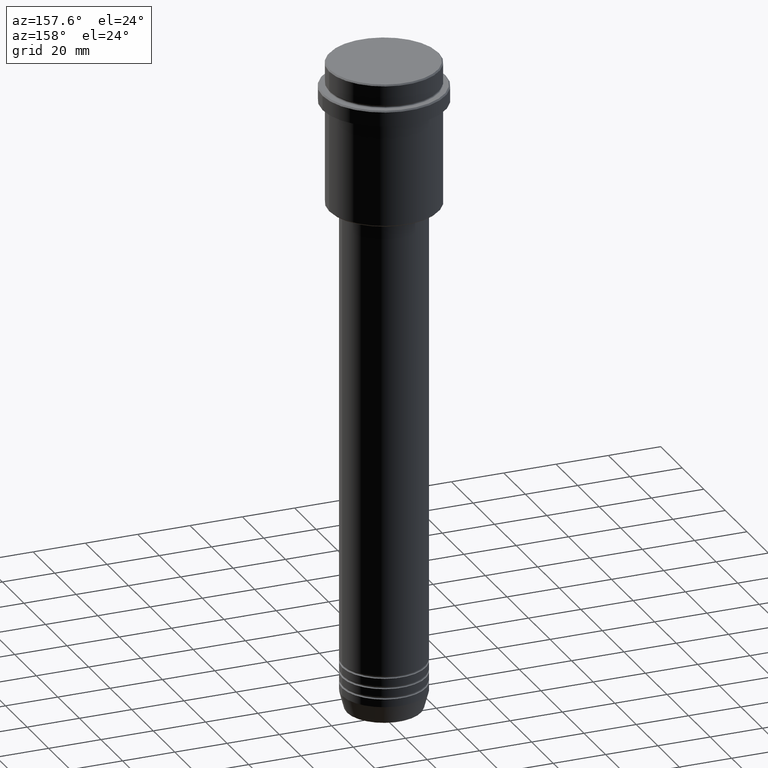
[diagram: clean part render]
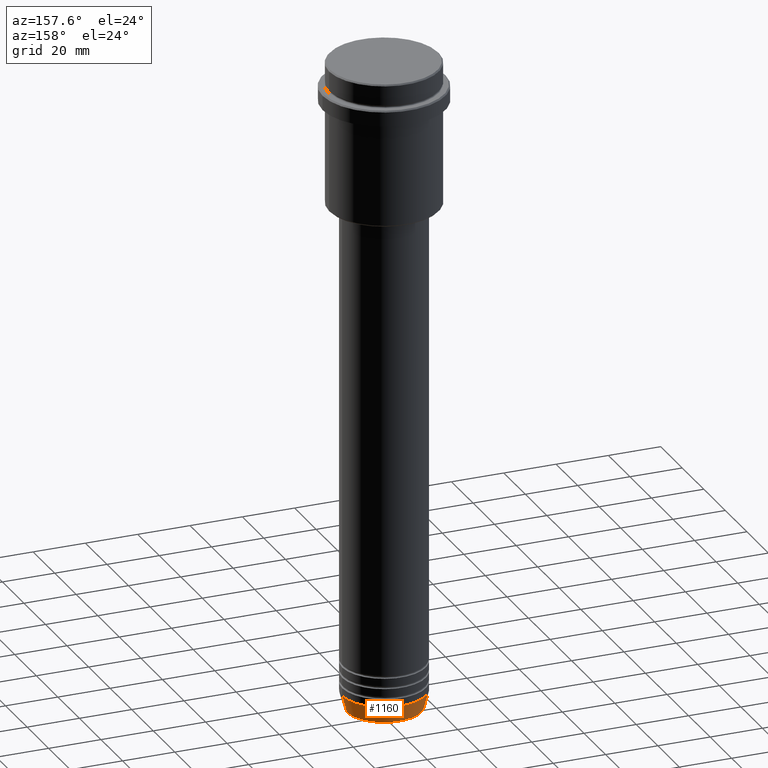
[diagram: same view with one face highlighted and labeled with its STEP entity id]
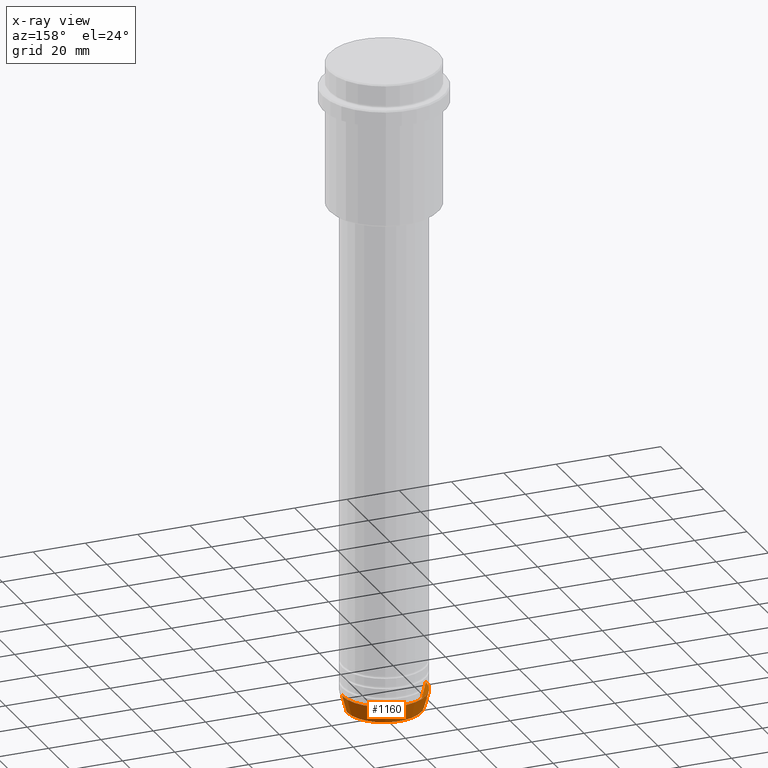
[diagram: x-ray of the same camera — body ghosted, the highlighted face saturated]
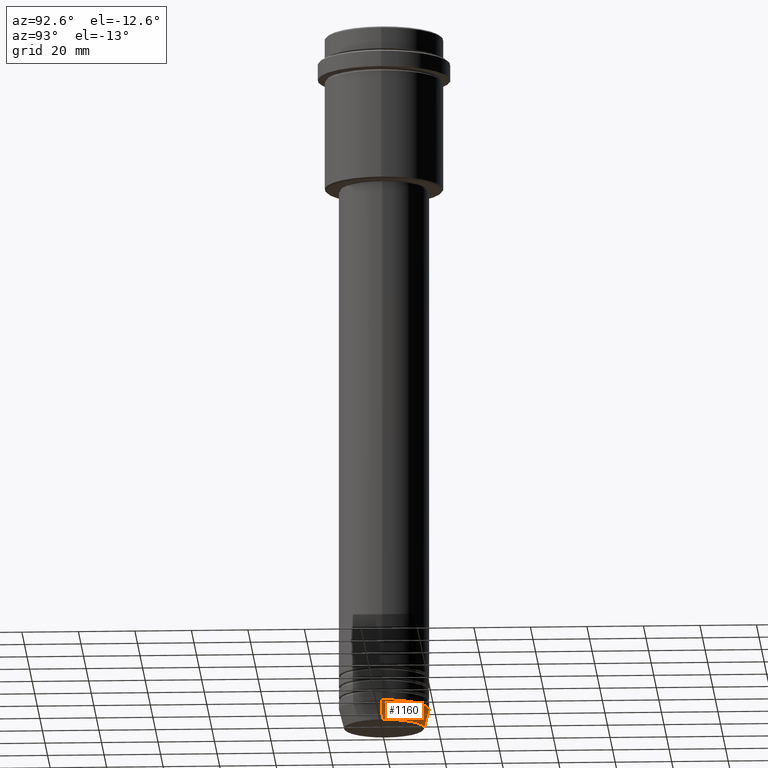
[diagram: same view with one face highlighted and labeled with its STEP entity id]
A machine part, auxiliary view. The second image highlights one B-rep face of the part: STEP entity #1160.
The next image is the same camera in x-ray: the body ghosted, the highlighted face saturated — about 0% of this face is hidden behind the body in this view.
A second angle (auxiliary view) of the same face is appended — the face is thin or edge-on in the first view.
In plain terms, the highlighted conical surface has half-angle 15 deg.
Its self-contained STEP definition (entity closure, byte-faithful):
#42 = DIRECTION ( 'NONE',  ( 0.2588190451025213501, 0.000000000000000000, 0.9659258262890680902 ) ) ;
#169 = LINE ( 'NONE', #693, #470 ) ;
#179 = DIRECTION ( 'NONE',  ( 1.000000000000000000, 0.000000000000000000, 0.000000000000000000 ) ) ;
#198 = EDGE_CURVE ( 'NONE', #1055, #305, #660, .T. ) ;
#254 = DIRECTION ( 'NONE',  ( -0.2588190451025213501, 3.169619151431772337E-17, 0.9659258262890680902 ) ) ;
#305 = VERTEX_POINT ( 'NONE', #1196 ) ;
#315 = VECTOR ( 'NONE', #254, 1000.000000000000000 ) ;
#395 = ORIENTED_EDGE ( 'NONE', *, *, #1106, .F. ) ;
#433 = CARTESIAN_POINT ( 'NONE',  ( 0.000000000000000000, 0.000000000000000000, -243.0000000000000000 ) ) ;
#437 = DIRECTION ( 'NONE',  ( 1.000000000000000000, 0.000000000000000000, 0.000000000000000000 ) ) ;
#459 = LINE ( 'NONE', #800, #315 ) ;
#470 = VECTOR ( 'NONE', #42, 1000.000000000000000 ) ;
#508 = ORIENTED_EDGE ( 'NONE', *, *, #964, .T. ) ;
#513 = DIRECTION ( 'NONE',  ( -0.000000000000000000, -0.000000000000000000, 1.000000000000000000 ) ) ;
#514 = AXIS2_PLACEMENT_3D ( 'NONE', #613, #1047, #842 ) ;
#556 = DIRECTION ( 'NONE',  ( -0.000000000000000000, -0.000000000000000000, 1.000000000000000000 ) ) ;
#613 = CARTESIAN_POINT ( 'NONE',  ( 0.000000000000000000, 0.000000000000000000, -243.0000000000000000 ) ) ;
#660 = CIRCLE ( 'NONE', #749, 16.00000000000000000 ) ;
#669 = VERTEX_POINT ( 'NONE', #908 ) ;
#693 = CARTESIAN_POINT ( 'NONE',  ( 16.00000000000000000, 0.000000000000000000, -243.0000000000000000 ) ) ;
#749 = AXIS2_PLACEMENT_3D ( 'NONE', #433, #556, #437 ) ;
#799 = VERTEX_POINT ( 'NONE', #841 ) ;
#800 = CARTESIAN_POINT ( 'NONE',  ( -16.00000000000000000, 1.959434878635765131E-15, -243.0000000000000000 ) ) ;
#832 = CIRCLE ( 'NONE', #1380, 14.22365507213718239 ) ;
#841 = CARTESIAN_POINT ( 'NONE',  ( -14.22365507213718239, 1.850665122131322942E-15, -249.6294095225512422 ) ) ;
#842 = DIRECTION ( 'NONE',  ( 1.000000000000000000, 0.000000000000000000, 0.000000000000000000 ) ) ;
#882 = EDGE_LOOP ( 'NONE', ( #885, #508, #1151, #395 ) ) ;
#885 = ORIENTED_EDGE ( 'NONE', *, *, #1085, .T. ) ;
#908 = CARTESIAN_POINT ( 'NONE',  ( 14.22365507213718239, 0.000000000000000000, -249.6294095225512422 ) ) ;
#952 = CONICAL_SURFACE ( 'NONE', #514, 16.00000000000000000, 0.2617993877991500740 ) ;
#964 = EDGE_CURVE ( 'NONE', #799, #305, #459, .T. ) ;
#1047 = DIRECTION ( 'NONE',  ( -0.000000000000000000, -0.000000000000000000, 1.000000000000000000 ) ) ;
#1055 = VERTEX_POINT ( 'NONE', #1244 ) ;
#1085 = EDGE_CURVE ( 'NONE', #669, #799, #832, .T. ) ;
#1106 = EDGE_CURVE ( 'NONE', #669, #1055, #169, .T. ) ;
#1151 = ORIENTED_EDGE ( 'NONE', *, *, #198, .F. ) ;
#1160 = ADVANCED_FACE ( 'NONE', ( #1372 ), #952, .T. ) ;
#1196 = CARTESIAN_POINT ( 'NONE',  ( -16.00000000000000000, 1.959434878635765131E-15, -243.0000000000000000 ) ) ;
#1244 = CARTESIAN_POINT ( 'NONE',  ( 16.00000000000000000, 0.000000000000000000, -243.0000000000000000 ) ) ;
#1372 = FACE_OUTER_BOUND ( 'NONE', #882, .T. ) ;
#1380 = AXIS2_PLACEMENT_3D ( 'NONE', #1382, #513, #179 ) ;
#1382 = CARTESIAN_POINT ( 'NONE',  ( 0.000000000000000000, 0.000000000000000000, -249.6294095225512422 ) ) ;